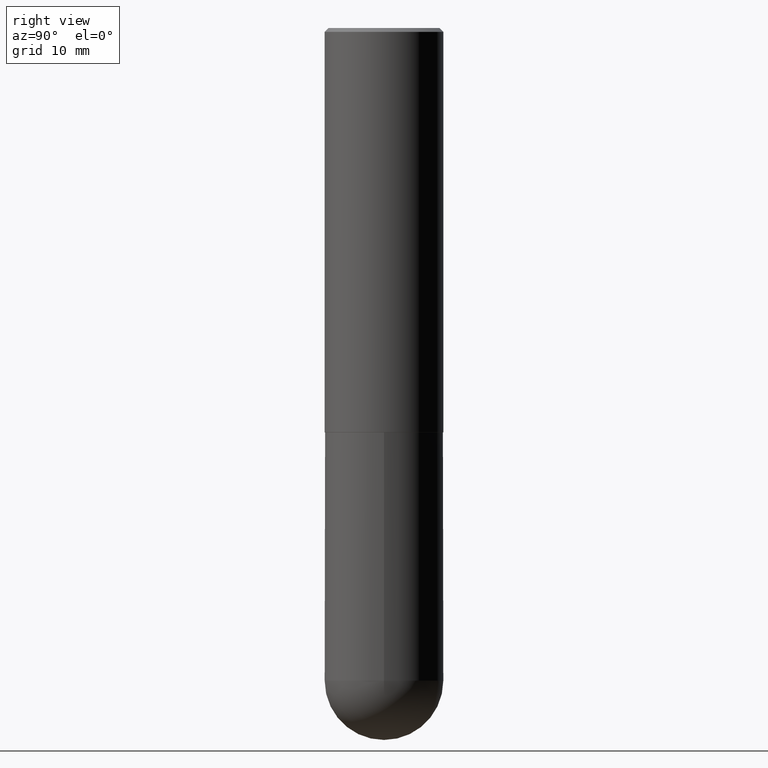
[diagram: clean part render]
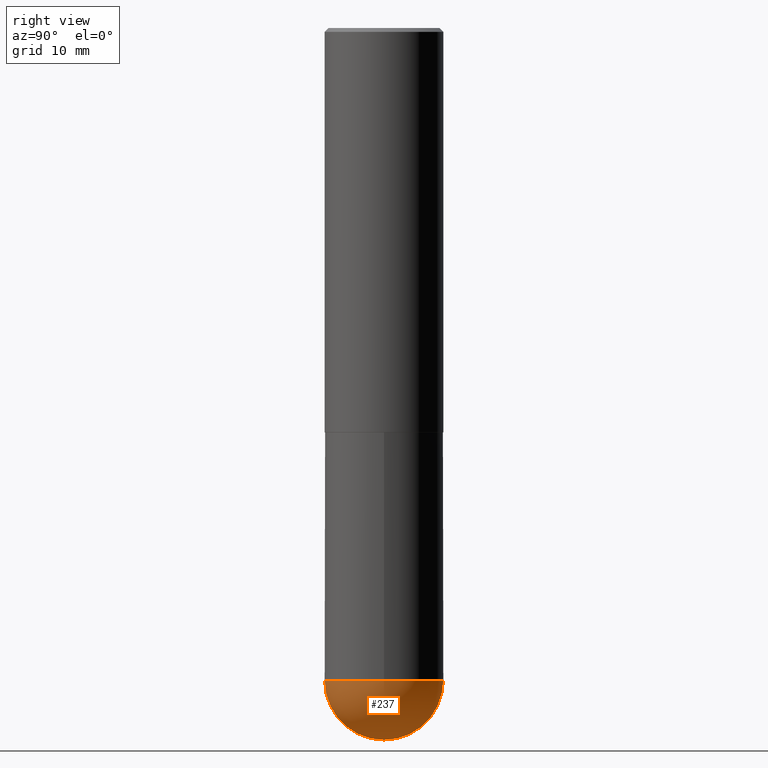
[diagram: same view with one face highlighted and labeled with its STEP entity id]
A machine part, right view. The second image highlights one B-rep face of the part: STEP entity #237.
In plain terms, the highlighted spherical surface has radius 7.9375 mm.
Its self-contained STEP definition (entity closure, byte-faithful):
#2 = EDGE_CURVE ( 'NONE', #362, #18, #363, .T. ) ;
#5 = DIRECTION ( 'NONE',  ( 6.982962677686265922E-15, 1.000000000000000000, -3.496765431890253764E-15 ) ) ;
#14 = EDGE_LOOP ( 'NONE', ( #275, #274, #273, #249 ) ) ;
#16 = AXIS2_PLACEMENT_3D ( 'NONE', #408, #123, #171 ) ;
#18 = VERTEX_POINT ( 'NONE', #240 ) ;
#23 = CIRCLE ( 'NONE', #390, 0.3125000000000000000 ) ;
#36 = DIRECTION ( 'NONE',  ( -2.445468806185136597E-29, 3.491481338843145583E-15, 1.000000000000000000 ) ) ;
#46 = DIRECTION ( 'NONE',  ( -7.105427357601000281E-15, -1.000000000000000000, 0.000000000000000000 ) ) ;
#66 = SPHERICAL_SURFACE ( 'NONE', #395, 0.3125000000000002776 ) ;
#71 = AXIS2_PLACEMENT_3D ( 'NONE', #219, #288, #349 ) ;
#74 = CARTESIAN_POINT ( 'NONE',  ( 8.406299021261405930E-29, -1.200196710227331114E-14, -3.437499999999999556 ) ) ;
#110 = AXIS2_PLACEMENT_3D ( 'NONE', #279, #268, #46 ) ;
#123 = DIRECTION ( 'NONE',  ( -2.445468806185136597E-29, 3.491481338843145583E-15, 1.000000000000000000 ) ) ;
#135 = FACE_OUTER_BOUND ( 'NONE', #14, .T. ) ;
#140 = CARTESIAN_POINT ( 'NONE',  ( 0.3125000000000000000, -1.190158701378156719E-14, -3.437499999999999556 ) ) ;
#158 = EDGE_CURVE ( 'NONE', #362, #304, #400, .T. ) ;
#163 = CIRCLE ( 'NONE', #16, 0.3125000000000000000 ) ;
#165 = EDGE_CURVE ( 'NONE', #18, #185, #163, .T. ) ;
#171 = DIRECTION ( 'NONE',  ( 1.000000000000000000, -6.982962677686269077E-15, 0.000000000000000000 ) ) ;
#185 = VERTEX_POINT ( 'NONE', #140 ) ;
#193 = EDGE_CURVE ( 'NONE', #185, #304, #23, .T. ) ;
#198 = CARTESIAN_POINT ( 'NONE',  ( 2.182175836777041572E-15, 0.3124999999999878431, -3.437500000000000888 ) ) ;
#219 = CARTESIAN_POINT ( 'NONE',  ( 8.075179243347521925E-29, -1.247614947041336144E-14, -3.437500000000000000 ) ) ;
#237 = ADVANCED_FACE ( 'NONE', ( #135 ), #66, .T. ) ;
#240 = CARTESIAN_POINT ( 'NONE',  ( -2.220446049250231828E-15, -0.3125000000000124345, -3.437499999999998668 ) ) ;
#249 = ORIENTED_EDGE ( 'NONE', *, *, #165, .F. ) ;
#268 = DIRECTION ( 'NONE',  ( -1.000000000000000000, 7.105427357601001070E-15, -4.926315508542082329E-29 ) ) ;
#273 = ORIENTED_EDGE ( 'NONE', *, *, #193, .F. ) ;
#274 = ORIENTED_EDGE ( 'NONE', *, *, #158, .T. ) ;
#275 = ORIENTED_EDGE ( 'NONE', *, *, #2, .F. ) ;
#279 = CARTESIAN_POINT ( 'NONE',  ( 8.075179243347521925E-29, -1.247614947041336144E-14, -3.437500000000000000 ) ) ;
#288 = DIRECTION ( 'NONE',  ( 1.000000000000000000, -6.982962677686265922E-15, 4.883557194083112340E-29 ) ) ;
#300 = CARTESIAN_POINT ( 'NONE',  ( 8.075179243347521925E-29, -1.247614947041336144E-14, -3.437500000000000000 ) ) ;
#304 = VERTEX_POINT ( 'NONE', #198 ) ;
#310 = CARTESIAN_POINT ( 'NONE',  ( 8.852750218548805549E-29, -1.354810228256516798E-14, -3.750000000000000000 ) ) ;
#332 = DIRECTION ( 'NONE',  ( -1.000000000000000000, 6.982962677686265922E-15, -4.883557194083112901E-29 ) ) ;
#349 = DIRECTION ( 'NONE',  ( 6.982962677686265922E-15, 1.000000000000000000, 0.000000000000000000 ) ) ;
#358 = DIRECTION ( 'NONE',  ( 1.000000000000000000, -6.982962677686269077E-15, 0.000000000000000000 ) ) ;
#362 = VERTEX_POINT ( 'NONE', #310 ) ;
#363 = CIRCLE ( 'NONE', #110, 0.3125000000000002776 ) ;
#390 = AXIS2_PLACEMENT_3D ( 'NONE', #74, #36, #358 ) ;
#395 = AXIS2_PLACEMENT_3D ( 'NONE', #300, #332, #5 ) ;
#400 = CIRCLE ( 'NONE', #71, 0.3125000000000002776 ) ;
#408 = CARTESIAN_POINT ( 'NONE',  ( 8.406299021261405930E-29, -1.200196710227331114E-14, -3.437499999999999556 ) ) ;